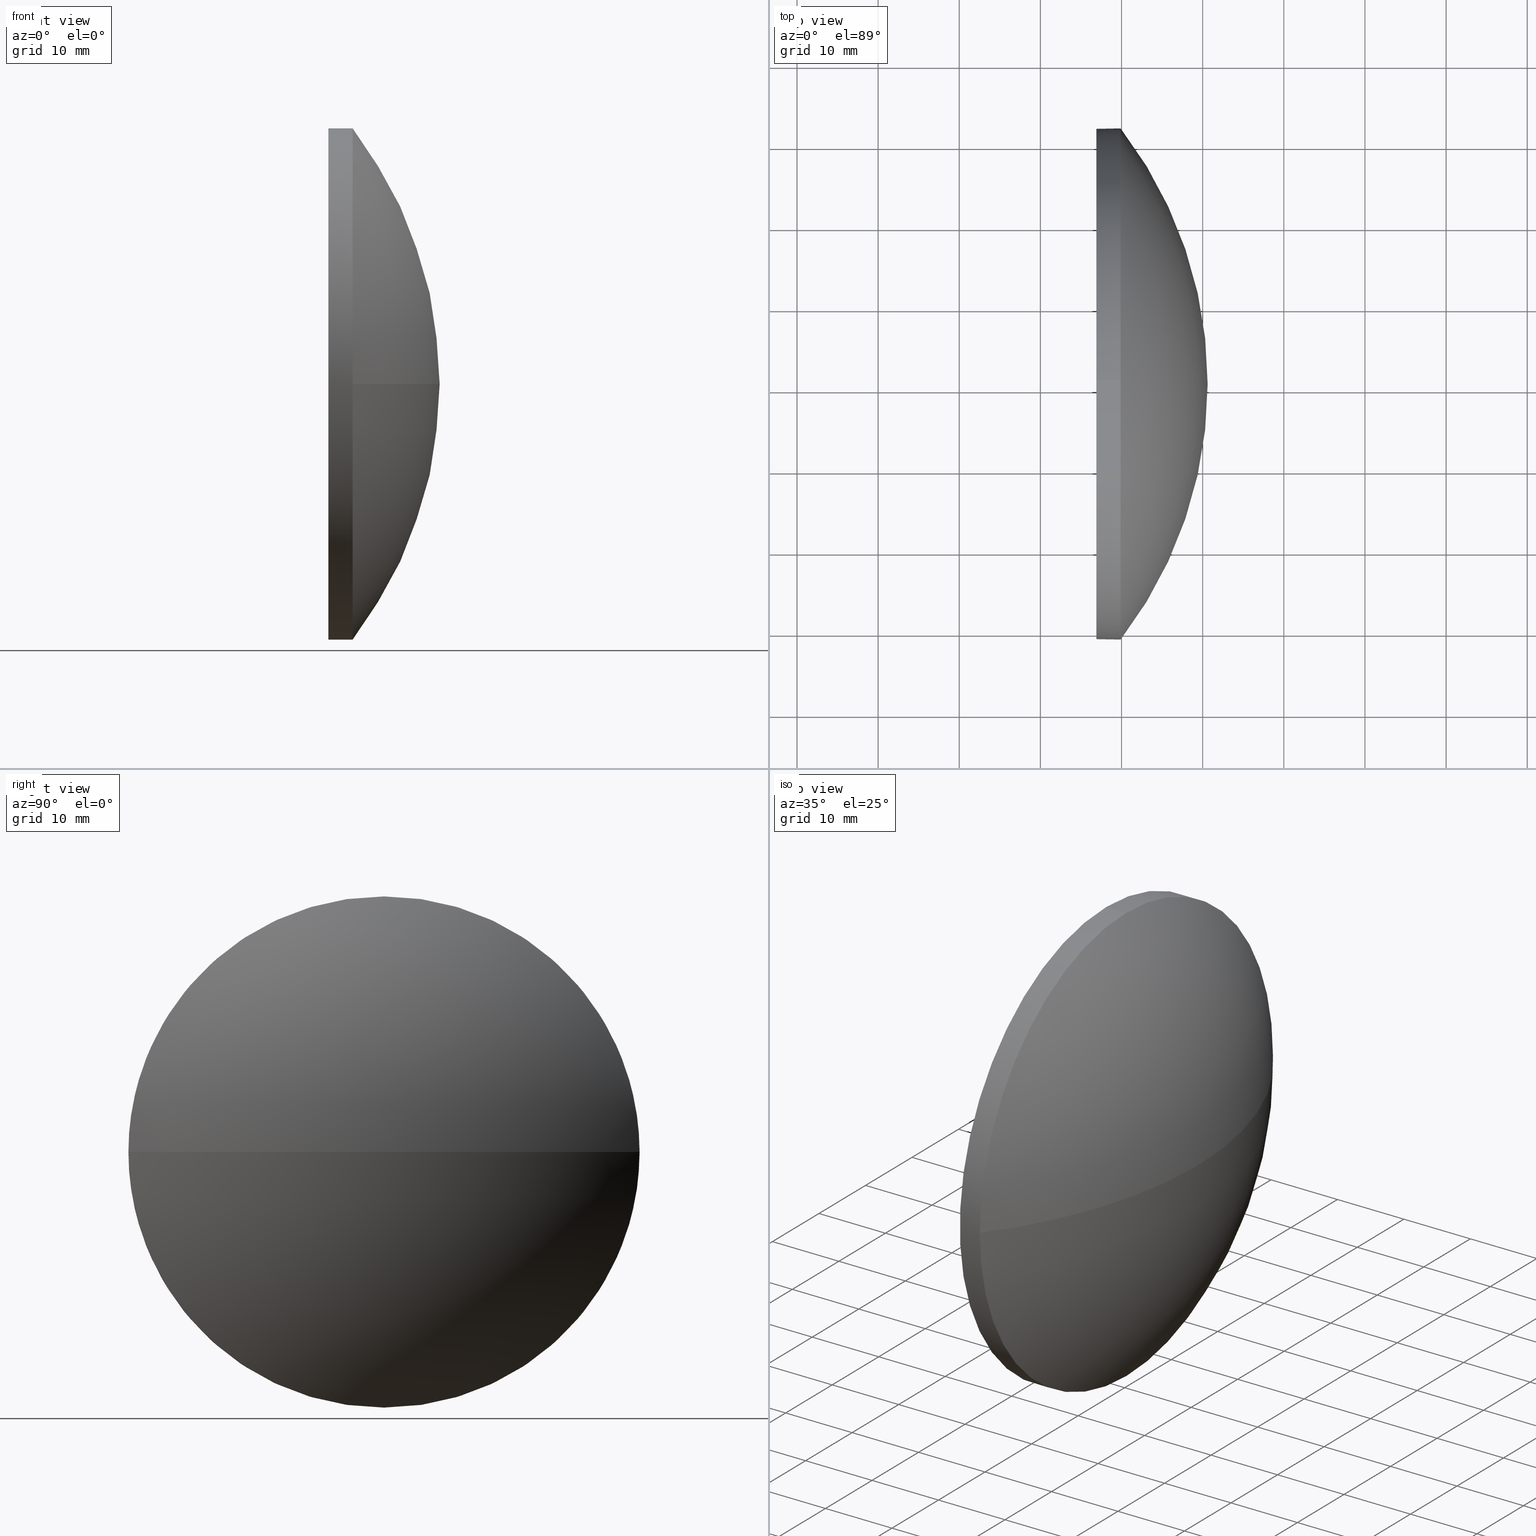
[diagram: canonical four-view strip — front | top / right | iso, engineering-drawing reading convention]
A machine part, canonical four-view strip (front | top / right | iso — engineering-drawing reading convention). The complete STEP part file that produces these views, byte-faithful:
ISO-10303-21;
HEADER;
FILE_DESCRIPTION (( 'STEP AP214' ),
    '1' );
FILE_NAME ('100244.STEP',
    '2019-05-28T08:41:19',
    ( '' ),
    ( '' ),
    'SwSTEP 2.0',
    'SolidWorks 2016',
    '' );
FILE_SCHEMA (( 'AUTOMOTIVE_DESIGN' ));
ENDSEC;

DATA;
#1 = ORIENTED_EDGE ( 'NONE', *, *, #159, .F. ) ;
#2 = STYLED_ITEM ( 'NONE', ( #165 ), #141 ) ;
#3 = CIRCLE ( 'NONE', #48, 31.50000000000000000 ) ;
#4 = PRODUCT_RELATED_PRODUCT_CATEGORY ( 'part', '', ( #60 ) ) ;
#5 = EDGE_CURVE ( 'NONE', #126, #170, #175, .T. ) ;
#6 = ORIENTED_EDGE ( 'NONE', *, *, #159, .T. ) ;
#7 = DIRECTION ( 'NONE',  ( 0.0000000000000000000, 0.0000000000000000000, 1.000000000000000000 ) ) ;
#8 = FILL_AREA_STYLE_COLOUR ( '', #111 ) ;
#9 = CARTESIAN_POINT ( 'NONE',  ( 229.8933010013870400, 162.0185814569561000, 0.0000000000000000000 ) ) ;
#10 = CARTESIAN_POINT ( 'NONE',  ( 229.8933010013870400, 130.5185814569561000, 0.0000000000000000000 ) ) ;
#11 = AXIS2_PLACEMENT_3D ( 'NONE', #153, #47, #186 ) ;
#12 = CARTESIAN_POINT ( 'NONE',  ( 218.1236667371545400, 130.5185814569561000, 0.0000000000000000000 ) ) ;
#13 = PRODUCT_CONTEXT ( 'NONE', #44, 'mechanical' ) ;
#14 = CIRCLE ( 'NONE', #93, 51.64031716417910900 ) ;
#15 = DIRECTION ( 'NONE',  ( 0.0000000000000000000, 1.000000000000000000, 0.0000000000000000000 ) ) ;
#16 = ORIENTED_EDGE ( 'NONE', *, *, #5, .T. ) ;
#17 = AXIS2_PLACEMENT_3D ( 'NONE', #12, #46, #26 ) ;
#18 = DIRECTION ( 'NONE',  ( -1.000000000000000000, -0.0000000000000000000, -0.0000000000000000000 ) ) ;
#19 = CARTESIAN_POINT ( 'NONE',  ( 218.1236667371545400, 130.5185814569561000, -31.50000000000000000 ) ) ;
#20 = EDGE_CURVE ( 'NONE', #170, #126, #147, .T. ) ;
#21 = FACE_OUTER_BOUND ( 'NONE', #110, .T. ) ;
#22 = DIRECTION ( 'NONE',  ( 1.000000000000000000, 0.0000000000000000000, 0.0000000000000000000 ) ) ;
#23 = SURFACE_SIDE_STYLE ('',( #174 ) ) ;
#24 =( NAMED_UNIT ( * ) PLANE_ANGLE_UNIT ( ) SI_UNIT ( $, .RADIAN. ) );
#25 = ORIENTED_EDGE ( 'NONE', *, *, #77, .F. ) ;
#26 = DIRECTION ( 'NONE',  ( 0.0000000000000000000, 0.0000000000000000000, 1.000000000000000000 ) ) ;
#27 = DIRECTION ( 'NONE',  ( -0.0000000000000000000, 0.0000000000000000000, -1.000000000000000000 ) ) ;
#28 = STYLED_ITEM ( 'NONE', ( #56 ), #83 ) ;
#29 = CARTESIAN_POINT ( 'NONE',  ( 226.8933010013870400, 130.5185814569561000, -31.50000000000000000 ) ) ;
#30 =( LENGTH_UNIT ( ) NAMED_UNIT ( * ) SI_UNIT ( .MILLI., .METRE. ) );
#31 = CIRCLE ( 'NONE', #145, 31.50000000000000000 ) ;
#32 = EDGE_CURVE ( 'NONE', #37, #65, #3, .T. ) ;
#33 = ORIENTED_EDGE ( 'NONE', *, *, #90, .F. ) ;
#34 = EDGE_CURVE ( 'NONE', #41, #170, #146, .T. ) ;
#35 = SPHERICAL_SURFACE ( 'NONE', #88, 51.64031716417910900 ) ;
#36 = DIRECTION ( 'NONE',  ( -1.000000000000000000, -0.0000000000000000000, -0.0000000000000000000 ) ) ;
#37 = VERTEX_POINT ( 'NONE', #128 ) ;
#38 = DIRECTION ( 'NONE',  ( 0.0000000000000000000, 1.000000000000000000, 0.0000000000000000000 ) ) ;
#39 = ADVANCED_FACE ( 'NONE', ( #51 ), #102, .T. ) ;
#40 = DIRECTION ( 'NONE',  ( -1.000000000000000000, -0.0000000000000000000, -0.0000000000000000000 ) ) ;
#41 = VERTEX_POINT ( 'NONE', #106 ) ;
#42 = PRODUCT_DEFINITION_SHAPE ( 'NONE', 'NONE',  #172 ) ;
#43 =( LENGTH_UNIT ( ) NAMED_UNIT ( * ) SI_UNIT ( .MILLI., .METRE. ) );
#44 = APPLICATION_CONTEXT ( 'automotive_design' ) ;
#45 = ORIENTED_EDGE ( 'NONE', *, *, #112, .T. ) ;
#46 = DIRECTION ( 'NONE',  ( -1.000000000000000000, -0.0000000000000000000, -0.0000000000000000000 ) ) ;
#47 = DIRECTION ( 'NONE',  ( 0.0000000000000000000, 1.224646799147353200E-016, -1.000000000000000000 ) ) ;
#48 = AXIS2_PLACEMENT_3D ( 'NONE', #184, #40, #151 ) ;
#49 = PRESENTATION_LAYER_ASSIGNMENT (  '', '', ( #28 ) ) ;
#50 = UNCERTAINTY_MEASURE_WITH_UNIT (LENGTH_MEASURE( 1.000000000000000100E-005 ), #30, 'distance_accuracy_value', 'NONE');
#51 = FACE_OUTER_BOUND ( 'NONE', #79, .T. ) ;
#52 = FILL_AREA_STYLE ('',( #8 ) ) ;
#53 = SPHERICAL_SURFACE ( 'NONE', #143, 51.64031716417910900 ) ;
#54 = SURFACE_STYLE_USAGE ( .BOTH. , #23 ) ;
#55 = PLANE ( 'NONE',  #117 ) ;
#56 = PRESENTATION_STYLE_ASSIGNMENT (( #138 ) ) ;
#57 = APPLICATION_PROTOCOL_DEFINITION ( 'draft international standard', 'automotive_design', 1998, #44 ) ;
#58 = MECHANICAL_DESIGN_GEOMETRIC_PRESENTATION_REPRESENTATION (  '', ( #28 ), #64 ) ;
#59 = CARTESIAN_POINT ( 'NONE',  ( 0.0000000000000000000, 0.0000000000000000000, 0.0000000000000000000 ) ) ;
#60 = PRODUCT ( '100244', '100244', '', ( #13 ) ) ;
#61 = ORIENTED_EDGE ( 'NONE', *, *, #112, .F. ) ;
#62 = FACE_OUTER_BOUND ( 'NONE', #107, .T. ) ;
#63 = ORIENTED_EDGE ( 'NONE', *, *, #77, .T. ) ;
#64 =( GEOMETRIC_REPRESENTATION_CONTEXT ( 3 ) GLOBAL_UNCERTAINTY_ASSIGNED_CONTEXT ( ( #50 ) ) GLOBAL_UNIT_ASSIGNED_CONTEXT ( ( #30, #119, #185 ) ) REPRESENTATION_CONTEXT ( 'NONE', 'WORKASPACE' ) );
#65 = VERTEX_POINT ( 'NONE', #9 ) ;
#66 = DIRECTION ( 'NONE',  ( -1.000000000000000000, -0.0000000000000000000, -0.0000000000000000000 ) ) ;
#67 = PRODUCT_DEFINITION_CONTEXT ( 'detailed design', #87, 'design' ) ;
#68 = CARTESIAN_POINT ( 'NONE',  ( 226.8933010013870400, 130.5185814569561000, 31.50000000000000000 ) ) ;
#69 = DIRECTION ( 'NONE',  ( 0.0000000000000000000, 0.0000000000000000000, 1.000000000000000000 ) ) ;
#70 = DIRECTION ( 'NONE',  ( 0.0000000000000000000, 0.0000000000000000000, -1.000000000000000000 ) ) ;
#71 = ORIENTED_EDGE ( 'NONE', *, *, #20, .F. ) ;
#72 = APPLICATION_PROTOCOL_DEFINITION ( 'draft international standard', 'automotive_design', 1998, #87 ) ;
#73 = ORIENTED_EDGE ( 'NONE', *, *, #5, .F. ) ;
#74 = DIRECTION ( 'NONE',  ( 1.000000000000000000, 0.0000000000000000000, 0.0000000000000000000 ) ) ;
#75 = VERTEX_POINT ( 'NONE', #114 ) ;
#76 = ORIENTED_EDGE ( 'NONE', *, *, #20, .T. ) ;
#77 = EDGE_CURVE ( 'NONE', #75, #65, #14, .T. ) ;
#78 = CARTESIAN_POINT ( 'NONE',  ( 226.8933010013870400, 130.5185814569561000, 0.0000000000000000000 ) ) ;
#79 = EDGE_LOOP ( 'NONE', ( #100, #140, #45, #103, #71 ) ) ;
#80 = CARTESIAN_POINT ( 'NONE',  ( 188.9729838372079500, 130.5185814569561000, 0.0000000000000000000 ) ) ;
#81 = EDGE_CURVE ( 'NONE', #65, #41, #177, .T. ) ;
#82 = CARTESIAN_POINT ( 'NONE',  ( 188.9729838372079500, 130.5185814569561000, 0.0000000000000000000 ) ) ;
#83 = ADVANCED_BREP_SHAPE_REPRESENTATION ( '100244', ( #141, #149 ), #154 ) ;
#84 = CARTESIAN_POINT ( 'NONE',  ( 188.9729838372079500, 130.5185814569561000, 0.0000000000000000000 ) ) ;
#85 = VERTEX_POINT ( 'NONE', #164 ) ;
#86 =( NAMED_UNIT ( * ) SI_UNIT ( $, .STERADIAN. ) SOLID_ANGLE_UNIT ( ) );
#87 = APPLICATION_CONTEXT ( 'automotive_design' ) ;
#88 = AXIS2_PLACEMENT_3D ( 'NONE', #84, #134, #38 ) ;
#89 = LINE ( 'NONE', #148, #158 ) ;
#90 = EDGE_CURVE ( 'NONE', #41, #85, #131, .T. ) ;
#91 = CARTESIAN_POINT ( 'NONE',  ( 226.8933010013870400, 130.5185814569561000, 0.0000000000000000000 ) ) ;
#92 = ORIENTED_EDGE ( 'NONE', *, *, #34, .T. ) ;
#93 = AXIS2_PLACEMENT_3D ( 'NONE', #80, #97, #181 ) ;
#94 = DIRECTION ( 'NONE',  ( 0.0000000000000000000, 0.0000000000000000000, 1.000000000000000000 ) ) ;
#95 = SURFACE_STYLE_FILL_AREA ( #116 ) ;
#96 = CARTESIAN_POINT ( 'NONE',  ( 229.8933010013870400, 130.5185814569561000, 0.0000000000000000000 ) ) ;
#97 = DIRECTION ( 'NONE',  ( -0.0000000000000000000, 0.0000000000000000000, 1.000000000000000000 ) ) ;
#98 = ORIENTED_EDGE ( 'NONE', *, *, #32, .F. ) ;
#99 =( NAMED_UNIT ( * ) SI_UNIT ( $, .STERADIAN. ) SOLID_ANGLE_UNIT ( ) );
#100 = ORIENTED_EDGE ( 'NONE', *, *, #34, .F. ) ;
#101 = MECHANICAL_DESIGN_GEOMETRIC_PRESENTATION_REPRESENTATION (  '', ( #2 ), #127 ) ;
#102 = CYLINDRICAL_SURFACE ( 'NONE', #144, 31.50000000000000000 ) ;
#103 = ORIENTED_EDGE ( 'NONE', *, *, #139, .T. ) ;
#104 = DIRECTION ( 'NONE',  ( -1.000000000000000000, -0.0000000000000000000, -0.0000000000000000000 ) ) ;
#105 = CARTESIAN_POINT ( 'NONE',  ( 226.8933010013870400, 130.5185814569561000, 0.0000000000000000000 ) ) ;
#106 = CARTESIAN_POINT ( 'NONE',  ( 229.8933010013870400, 130.5185814569561000, -31.50000000000000000 ) ) ;
#107 = EDGE_LOOP ( 'NONE', ( #25, #6, #33, #156 ) ) ;
#108 = FILL_AREA_STYLE_COLOUR ( '', #122 ) ;
#109 = CLOSED_SHELL ( 'NONE', ( #178, #115, #167, #39, #125 ) ) ;
#110 = EDGE_LOOP ( 'NONE', ( #16, #76 ) ) ;
#111 = COLOUR_RGB ( '',1.000000000000000000, 1.000000000000000000, 1.000000000000000000 ) ;
#112 = EDGE_CURVE ( 'NONE', #85, #37, #31, .T. ) ;
#113 = DIRECTION ( 'NONE',  ( -1.000000000000000000, -0.0000000000000000000, -0.0000000000000000000 ) ) ;
#114 = CARTESIAN_POINT ( 'NONE',  ( 240.6133010013870700, 130.5185814569561000, 0.0000000000000000000 ) ) ;
#115 = ADVANCED_FACE ( 'NONE', ( #62 ), #35, .T. ) ;
#116 = FILL_AREA_STYLE ('',( #108 ) ) ;
#117 = AXIS2_PLACEMENT_3D ( 'NONE', #105, #22, #70 ) ;
#118 = ORIENTED_EDGE ( 'NONE', *, *, #81, .T. ) ;
#119 =( NAMED_UNIT ( * ) PLANE_ANGLE_UNIT ( ) SI_UNIT ( $, .RADIAN. ) );
#120 = AXIS2_PLACEMENT_3D ( 'NONE', #91, #18, #180 ) ;
#121 = VECTOR ( 'NONE', #104, 1000.000000000000000 ) ;
#122 = COLOUR_RGB ( '',1.000000000000000000, 1.000000000000000000, 1.000000000000000000 ) ;
#123 = PRESENTATION_LAYER_ASSIGNMENT (  '', '', ( #2 ) ) ;
#124 = FACE_OUTER_BOUND ( 'NONE', #142, .T. ) ;
#125 = ADVANCED_FACE ( 'NONE', ( #21 ), #55, .F. ) ;
#126 = VERTEX_POINT ( 'NONE', #68 ) ;
#127 =( GEOMETRIC_REPRESENTATION_CONTEXT ( 3 ) GLOBAL_UNCERTAINTY_ASSIGNED_CONTEXT ( ( #168 ) ) GLOBAL_UNIT_ASSIGNED_CONTEXT ( ( #43, #24, #99 ) ) REPRESENTATION_CONTEXT ( 'NONE', 'WORKASPACE' ) );
#128 = CARTESIAN_POINT ( 'NONE',  ( 229.8933010013870400, 130.5185814569561000, 31.50000000000000000 ) ) ;
#129 = DIRECTION ( 'NONE',  ( -1.000000000000000000, -0.0000000000000000000, -0.0000000000000000000 ) ) ;
#130 = DIRECTION ( 'NONE',  ( 0.0000000000000000000, 0.0000000000000000000, 1.000000000000000000 ) ) ;
#131 = CIRCLE ( 'NONE', #136, 31.50000000000000000 ) ;
#132 = FACE_OUTER_BOUND ( 'NONE', #183, .T. ) ;
#133 = AXIS2_PLACEMENT_3D ( 'NONE', #169, #129, #7 ) ;
#134 = DIRECTION ( 'NONE',  ( -0.0000000000000000000, 0.0000000000000000000, -1.000000000000000000 ) ) ;
#135 = DIRECTION ( 'NONE',  ( -1.000000000000000000, -0.0000000000000000000, -0.0000000000000000000 ) ) ;
#136 = AXIS2_PLACEMENT_3D ( 'NONE', #96, #166, #94 ) ;
#137 = ORIENTED_EDGE ( 'NONE', *, *, #32, .T. ) ;
#138 = SURFACE_STYLE_USAGE ( .BOTH. , #173 ) ;
#139 = EDGE_CURVE ( 'NONE', #37, #126, #89, .T. ) ;
#140 = ORIENTED_EDGE ( 'NONE', *, *, #90, .T. ) ;
#141 = MANIFOLD_SOLID_BREP ( '��ת2', #109 ) ;
#142 = EDGE_LOOP ( 'NONE', ( #1, #63, #98, #61 ) ) ;
#143 = AXIS2_PLACEMENT_3D ( 'NONE', #82, #27, #15 ) ;
#144 = AXIS2_PLACEMENT_3D ( 'NONE', #162, #135, #130 ) ;
#145 = AXIS2_PLACEMENT_3D ( 'NONE', #10, #113, #69 ) ;
#146 = LINE ( 'NONE', #19, #121 ) ;
#147 = CIRCLE ( 'NONE', #179, 31.50000000000000000 ) ;
#148 = CARTESIAN_POINT ( 'NONE',  ( 218.1236667371545400, 130.5185814569561000, 31.50000000000000000 ) ) ;
#149 = AXIS2_PLACEMENT_3D ( 'NONE', #59, #171, #74 ) ;
#150 = DIRECTION ( 'NONE',  ( 0.0000000000000000000, 0.0000000000000000000, 1.000000000000000000 ) ) ;
#151 = DIRECTION ( 'NONE',  ( 0.0000000000000000000, 0.0000000000000000000, 1.000000000000000000 ) ) ;
#152 = ORIENTED_EDGE ( 'NONE', *, *, #139, .F. ) ;
#153 = CARTESIAN_POINT ( 'NONE',  ( 188.9729838372079500, 130.5185814569561000, 0.0000000000000000000 ) ) ;
#154 =( GEOMETRIC_REPRESENTATION_CONTEXT ( 3 ) GLOBAL_UNCERTAINTY_ASSIGNED_CONTEXT ( ( #176 ) ) GLOBAL_UNIT_ASSIGNED_CONTEXT ( ( #155, #157, #86 ) ) REPRESENTATION_CONTEXT ( 'NONE', 'WORKASPACE' ) );
#155 =( LENGTH_UNIT ( ) NAMED_UNIT ( * ) SI_UNIT ( .MILLI., .METRE. ) );
#156 = ORIENTED_EDGE ( 'NONE', *, *, #81, .F. ) ;
#157 =( NAMED_UNIT ( * ) PLANE_ANGLE_UNIT ( ) SI_UNIT ( $, .RADIAN. ) );
#158 = VECTOR ( 'NONE', #66, 1000.000000000000000 ) ;
#159 = EDGE_CURVE ( 'NONE', #75, #85, #160, .T. ) ;
#160 = CIRCLE ( 'NONE', #11, 51.64031716417910900 ) ;
#161 = SHAPE_DEFINITION_REPRESENTATION ( #42, #83 ) ;
#162 = CARTESIAN_POINT ( 'NONE',  ( 218.1236667371545400, 130.5185814569561000, 0.0000000000000000000 ) ) ;
#163 = CYLINDRICAL_SURFACE ( 'NONE', #17, 31.50000000000000000 ) ;
#164 = CARTESIAN_POINT ( 'NONE',  ( 229.8933010013870400, 99.01858145695611300, -3.857637417314162700E-015 ) ) ;
#165 = PRESENTATION_STYLE_ASSIGNMENT (( #54 ) ) ;
#166 = DIRECTION ( 'NONE',  ( -1.000000000000000000, -0.0000000000000000000, -0.0000000000000000000 ) ) ;
#167 = ADVANCED_FACE ( 'NONE', ( #124 ), #53, .T. ) ;
#168 = UNCERTAINTY_MEASURE_WITH_UNIT (LENGTH_MEASURE( 1.000000000000000100E-005 ), #43, 'distance_accuracy_value', 'NONE');
#169 = CARTESIAN_POINT ( 'NONE',  ( 229.8933010013870400, 130.5185814569561000, 0.0000000000000000000 ) ) ;
#170 = VERTEX_POINT ( 'NONE', #29 ) ;
#171 = DIRECTION ( 'NONE',  ( 0.0000000000000000000, 0.0000000000000000000, 1.000000000000000000 ) ) ;
#172 = PRODUCT_DEFINITION ( 'δ֪', '', #182, #67 ) ;
#173 = SURFACE_SIDE_STYLE ('',( #95 ) ) ;
#174 = SURFACE_STYLE_FILL_AREA ( #52 ) ;
#175 = CIRCLE ( 'NONE', #120, 31.50000000000000000 ) ;
#176 = UNCERTAINTY_MEASURE_WITH_UNIT (LENGTH_MEASURE( 1.000000000000000100E-005 ), #155, 'distance_accuracy_value', 'NONE');
#177 = CIRCLE ( 'NONE', #133, 31.50000000000000000 ) ;
#178 = ADVANCED_FACE ( 'NONE', ( #132 ), #163, .T. ) ;
#179 = AXIS2_PLACEMENT_3D ( 'NONE', #78, #36, #150 ) ;
#180 = DIRECTION ( 'NONE',  ( 0.0000000000000000000, 0.0000000000000000000, 1.000000000000000000 ) ) ;
#181 = DIRECTION ( 'NONE',  ( 1.000000000000000000, 0.0000000000000000000, 0.0000000000000000000 ) ) ;
#182 = PRODUCT_DEFINITION_FORMATION_WITH_SPECIFIED_SOURCE ( '�κ�', '', #60, .NOT_KNOWN. ) ;
#183 = EDGE_LOOP ( 'NONE', ( #118, #92, #73, #152, #137 ) ) ;
#184 = CARTESIAN_POINT ( 'NONE',  ( 229.8933010013870400, 130.5185814569561000, 0.0000000000000000000 ) ) ;
#185 =( NAMED_UNIT ( * ) SI_UNIT ( $, .STERADIAN. ) SOLID_ANGLE_UNIT ( ) );
#186 = DIRECTION ( 'NONE',  ( 0.0000000000000000000, 1.000000000000000000, 1.224646799147353200E-016 ) ) ;
ENDSEC;
END-ISO-10303-21;
